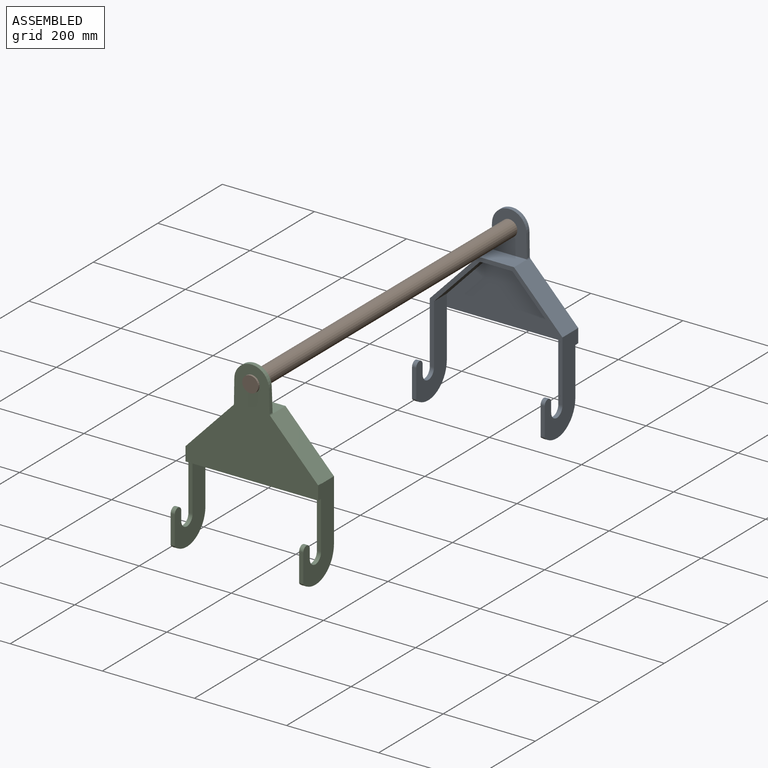
[diagram: assembled view]
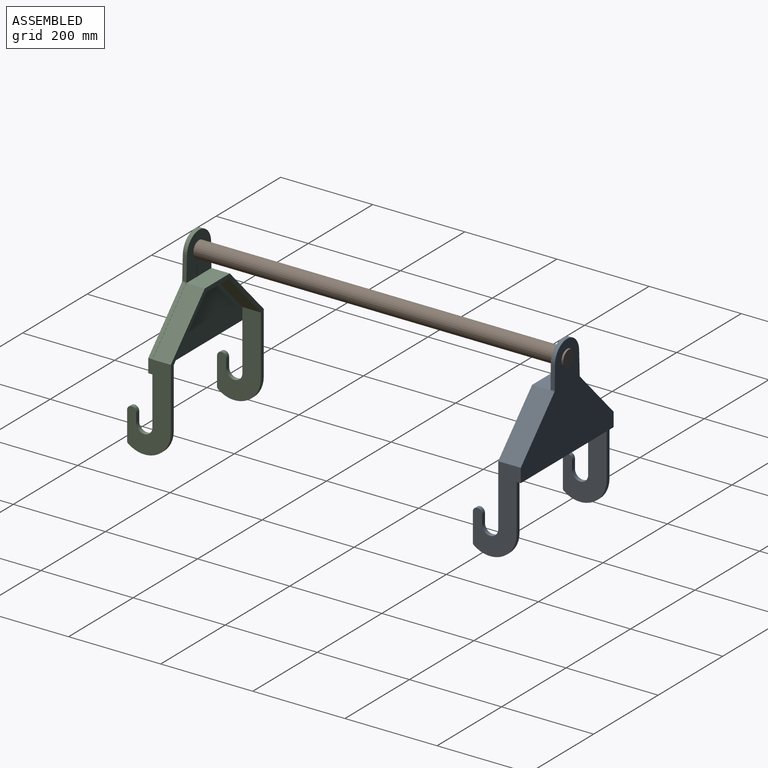
[diagram: assembled view, second angle]
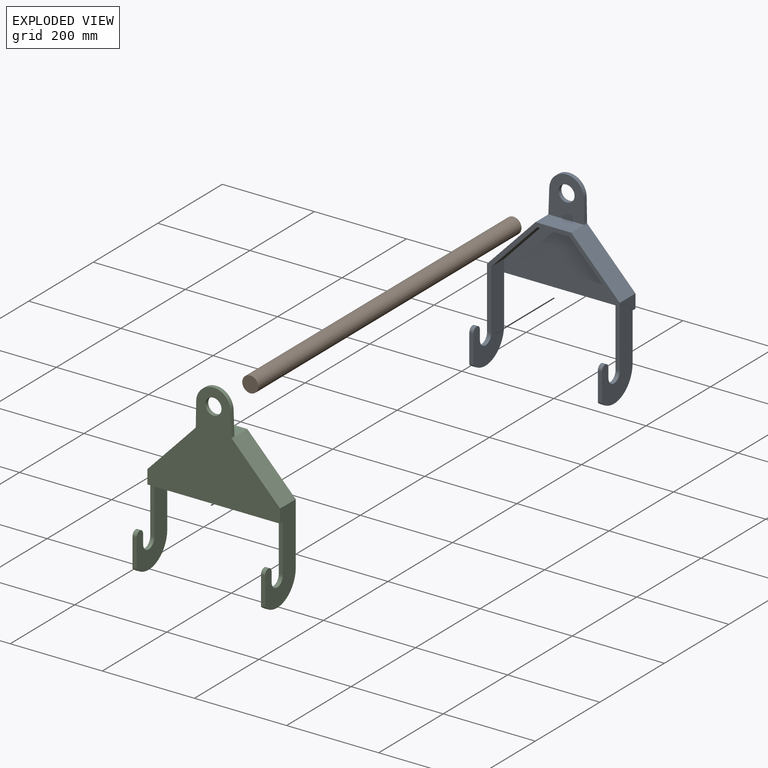
[diagram: exploded view]
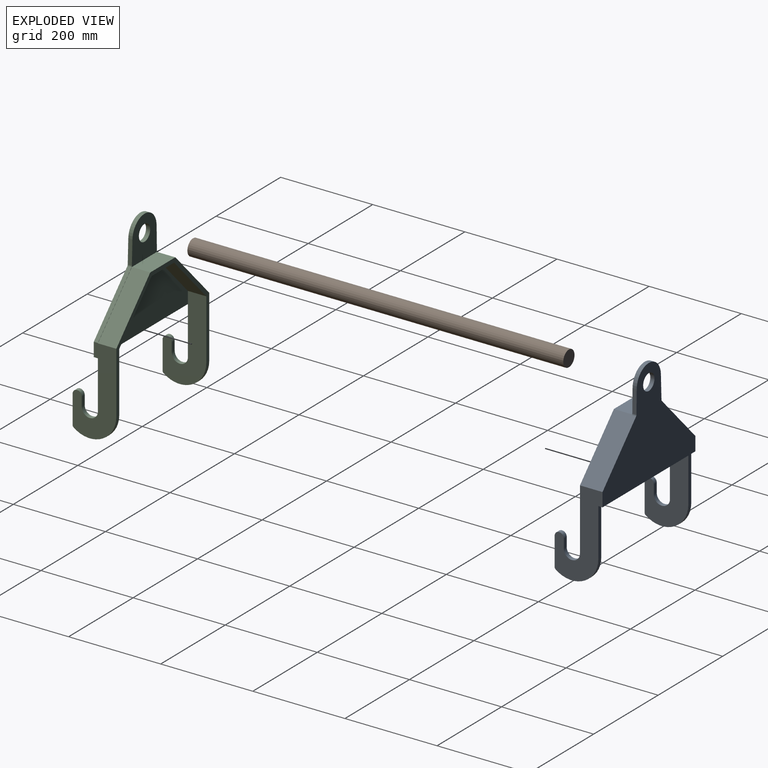
[diagram: exploded view, second angle]
ASSEMBLY  parts=3 mates=2
PART A: 35 faces, bbox 288x104x389.7 mm
  f0: plane 103.62x9mm, normal (0,1,0), area 932.6mm2, adj f6,f7,f16,f29
  f1: plane 191.12x104mm, normal (-1,0,0), area 10278.4mm2, adj f10,f12,f13,f14,f15,f18,f20,f22
  f2: plane 187.5x95mm, normal (1,0,0), area 9863.7mm2, adj f3,f12,f13,f14,f15,f18,f20,f22
  f3: plane 104.32x100mm, normal (0.72,0,-0.69), area 5780.4mm2, adj f2,f4,f22,f25
  f4: plane 70x40mm, normal (0,0,-1), area 2800mm2, adj f3,f5,f22,f25
  f5: plane 104.32x100mm, normal (-0.72,0,-0.69), area 5780.4mm2, adj f4,f6,f22,f25
  f6: plane 187.5x95mm, normal (-1,0,0), area 9863.7mm2, adj f0,f5,f11,f16,f17,f19,f21,f22
  f7: plane 191.12x104mm, normal (1,0,0), area 10278.4mm2, adj f0,f8,f11,f16,f17,f19,f21,f22
  f8: plane 109.7x105.16mm, normal (0.72,0,0.69), area 7428.7mm2, adj f7,f9,f22,f28,f33,f34
  f9: plane 77.68x40mm, normal (0,0,1), area 3107.2mm2, adj f8,f10,f22,f34
  f10: plane 109.7x105.16mm, normal (-0.72,0,0.69), area 7429.2mm2, adj f1,f9,f22,f30,f33,f34
  f11: plane 61.23x9mm, normal (0,-1,0), area 551.1mm2, adj f6,f7,f17,f24
  f12: plane 61.23x9mm, normal (0,-1,0), area 551.1mm2, adj f1,f2,f15,f23
  f13: plane 103.62x9mm, normal (0,1,0), area 932.6mm2, adj f1,f2,f14,f29
  f14: cylinder r=57.5mm len=93.1mm, axis (-1,0,0), area 1158.3mm2, adj f1,f2,f13,f15
  f15: cylinder r=5mm len=9mm, axis (-1,0,0), area 40.6mm2, adj f1,f2,f12,f14
  f16: cylinder r=57.5mm len=93.1mm, axis (-1,0,0), area 1158.3mm2, adj f0,f6,f7,f17
  f17: cylinder r=5mm len=9mm, axis (-1,0,0), area 40.6mm2, adj f6,f7,f11,f16
  f18: cylinder r=17.5mm len=35mm, axis (-1,0,0), area 494.8mm2, adj f1,f2,f20,f22
  f19: cylinder r=17.5mm len=35mm, axis (-1,0,0), area 494.8mm2, adj f6,f7,f21,f22
  f20: plane 20x9mm, normal (0,1,0), area 180mm2, adj f1,f2,f18,f23
  f21: plane 20x9mm, normal (0,1,0), area 180mm2, adj f6,f7,f19,f24
  f22: plane 288x243.32mm, normal (0,-1,0), area 5705.4mm2, adj f1,f2,f3,f4,f5,f6,f7,f8
  f23: cylinder r=10mm len=20mm, axis (-1,0,0), area 282.7mm2, adj f1,f2,f12,f20
  f24: cylinder r=10mm len=20mm, axis (-1,0,0), area 282.7mm2, adj f6,f7,f11,f21
  f25: plane 270x130.7mm, normal (0,-1,0), area 24858.1mm2, adj f2,f3,f4,f5,f6,f29
  f26: cylinder r=37.5mm len=74.98mm, axis (0,-1,0), area 1049.7mm2, adj f27,f31,f33,f34
  f27: plane 49.27x9mm, normal (1,0,0.02), area 443.5mm2, adj f26,f28,f33,f34
  f28: cylinder r=5mm len=9mm, axis (0,-1,0), area 33.7mm2, adj f8,f27,f33,f34
  f29: plane 288x9mm, normal (0,0,-1), area 2592mm2, adj f0,f1,f7,f13,f25,f33
  f30: cylinder r=5mm len=9mm, axis (0,-1,0), area 32.8mm2, adj f10,f31,f33,f34
  f31: plane 50.83x9mm, normal (-1,0,0.04), area 457.8mm2, adj f26,f30,f33,f34
  f32: cylinder r=17.5mm len=35mm, axis (0,-1,0), area 989.6mm2, adj f33,f34
  f33: plane 288x228.6mm, normal (0,1,0), area 33870.2mm2, adj f1,f7,f8,f10,f26,f27,f28,f29
  f34: plane 90.31x80.36mm, normal (0,-1,0), area 5171.9mm2, adj f8,f9,f10,f26,f27,f28,f30,f31
PART B: 3 faces, bbox 35x816x35 mm
  f0: cylinder r=17.5mm len=816mm, axis (0,1,0), area 89723.9mm2, adj f1,f2
  f1: plane 35x35mm, normal (0,-1,0), area 962.1mm2, adj f0
  f2: plane 35x35mm, normal (0,1,0), area 962.1mm2, adj f0
PART C: 37 faces, bbox 288x95x390.4 mm
  f0: plane 104.27x9mm, normal (0,-1,0), area 938.4mm2, adj f1,f2,f18,f30
  f1: plane 191.77x95mm, normal (-1,0,0), area 10278.4mm2, adj f0,f10,f12,f13,f14,f15,f18,f20
  f2: plane 187.5x95mm, normal (1,0,0), area 9863.7mm2, adj f0,f3,f12,f13,f14,f15,f18,f20
  f3: plane 104.32x100mm, normal (0.72,0,-0.69), area 5780.4mm2, adj f2,f4,f13,f25
  f4: plane 70x40mm, normal (0,0,-1), area 2800mm2, adj f3,f5,f13,f25
  f5: plane 104.32x100mm, normal (-0.72,0,-0.69), area 5780.4mm2, adj f4,f6,f13,f25
  f6: plane 187.5x95mm, normal (-1,0,0), area 9863.7mm2, adj f5,f11,f13,f16,f17,f19,f21,f22
  f7: plane 191.77x95mm, normal (1,0,0), area 10278.4mm2, adj f8,f11,f13,f16,f17,f19,f21,f22
  f8: plane 109.7x105.16mm, normal (0.72,0,0.69), area 6078.6mm2, adj f7,f9,f13,f36
  f9: plane 77.68x40mm, normal (0,0,1), area 3107.2mm2, adj f8,f10,f13,f36
  f10: plane 109.7x105.16mm, normal (-0.72,0,0.69), area 6078.6mm2, adj f1,f9,f13,f36
  f11: plane 61.23x9mm, normal (0,-1,0), area 551.1mm2, adj f6,f7,f17,f24
  f12: plane 61.23x9mm, normal (0,-1,0), area 551.1mm2, adj f1,f2,f15,f23
  f13: plane 288x243.32mm, normal (0,1,0), area 5705.4mm2, adj f1,f2,f3,f4,f5,f6,f7,f8
  f14: cylinder r=57.5mm len=93.1mm, axis (-1,0,0), area 1158.3mm2, adj f1,f2,f13,f15
  f15: cylinder r=5mm len=9mm, axis (-1,0,0), area 40.6mm2, adj f1,f2,f12,f14
  f16: cylinder r=57.5mm len=93.1mm, axis (-1,0,0), area 1158.3mm2, adj f6,f7,f13,f17
  f17: cylinder r=5mm len=9mm, axis (-1,0,0), area 40.6mm2, adj f6,f7,f11,f16
  f18: cylinder r=17.5mm len=35mm, axis (-1,0,0), area 494.8mm2, adj f0,f1,f2,f20
  f19: cylinder r=17.5mm len=35mm, axis (-1,0,0), area 494.8mm2, adj f6,f7,f21,f22
  f20: plane 20x9mm, normal (0,1,0), area 180mm2, adj f1,f2,f18,f23
  f21: plane 20x9mm, normal (0,1,0), area 180mm2, adj f6,f7,f19,f24
  f22: plane 104.27x9mm, normal (0,-1,0), area 938.4mm2, adj f6,f7,f19,f30
  f23: cylinder r=10mm len=20mm, axis (-1,0,0), area 282.7mm2, adj f1,f2,f12,f20
  f24: cylinder r=10mm len=20mm, axis (-1,0,0), area 282.7mm2, adj f6,f7,f11,f21
  f25: plane 270x130.06mm, normal (0,1,0), area 24682.7mm2, adj f2,f3,f4,f5,f6,f30
  f26: cylinder r=37.5mm len=74.98mm, axis (0,1,0), area 1049.7mm2, adj f27,f33,f35,f36
  f27: plane 49.27x9mm, normal (-1,0,0.02), area 443.5mm2, adj f26,f28,f35,f36
  f28: cylinder r=5mm len=9mm, axis (0,1,0), area 33.7mm2, adj f27,f29,f35,f36
  f29: plane 108.29x103.8mm, normal (-0.72,0,0.69), area 1350mm2, adj f1,f28,f35,f36
  f30: plane 288x9mm, normal (0,0,-1), area 2592mm2, adj f0,f1,f7,f22,f25,f35
  f31: plane 108.33x103.84mm, normal (0.72,0,0.69), area 1350.5mm2, adj f7,f32,f35,f36
  f32: cylinder r=5mm len=9mm, axis (0,1,0), area 32.8mm2, adj f31,f33,f35,f36
  f33: plane 50.83x9mm, normal (1,0,0.04), area 457.8mm2, adj f26,f32,f35,f36
  f34: cylinder r=17.5mm len=35mm, axis (0,1,0), area 989.6mm2, adj f35,f36
  f35: plane 288x228.6mm, normal (0,-1,0), area 33870.2mm2, adj f1,f7,f26,f27,f28,f29,f30,f31
  f36: plane 288x199.25mm, normal (0,1,0), area 5359mm2, adj f1,f7,f8,f9,f10,f26,f27,f28
PLACE A t=(-159.65,96.26,-81.62)mm
PLACE B t=(-24.13,109.26,270.6)mm
PLACE C t=(-158.61,-653.74,-82.27)mm
MATE fastened B.f0 <-> A.f26  axis (0,1,0) through (-24.13,109.26,270.6)mm
MATE fastened C.f26 <-> B.f0  axis (0,-1,0) through (-24.13,-702.74,270.6)mm
